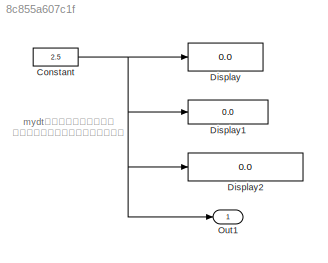
MODEL slx_8c855a607c1f
KIND model
CONFIG AbsTol = auto
CONFIG FixedStep = auto
CONFIG MaxStep = auto
CONFIG MinStep = auto
CONFIG PreLoadFcn = mydt = fixdt(1,8,4)
CONFIG RelTol = 1e-3
CONFIG SampleTimeConstraint = Unconstrained
CONFIG Solver = ode45
CONFIG SolverMode = Auto
CONFIG SolverName = ode45
CONFIG StartTime = 0.0
CONFIG StopTime = 10.0
BLOCK [Constant] Constant
  AttributesFormatString = DataType = %<OutDataTypeStr>
  OutDataTypeStr = mydt
  SampleTime = -1
  Value = 2.5
BLOCK [Display] Display
  AttributesFormatString = Format = %<Format>
  Decimation = 1
  Ports = [1]
BLOCK [Display] Display1
  AttributesFormatString = Format = %<Format>
  Decimation = 1
  Format = hex (Stored Integer)
  Ports = [1]
BLOCK [Display] Display2
  AttributesFormatString = Format = %<Format>
  Decimation = 1
  Format = binary (Stored Integer)
  Ports = [1]
BLOCK [Outport] Out1
  IconDisplay = Port number
ANNOTATION (root): mydtはモデルプロパティの コールバックで定義されています。
NET Constant:1 -> Display1:1, Display2:1, Display:1, Out1:1
note: NET lines group one-source signal fan-out (src -> all destinations, sorted); 1:1 wires keep LINE
